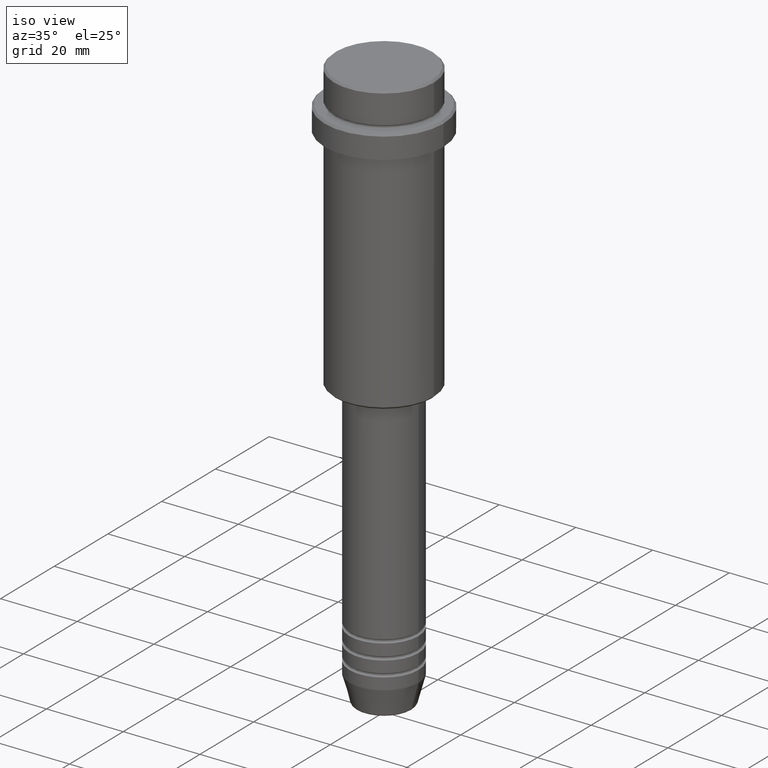
[diagram: clean part render]
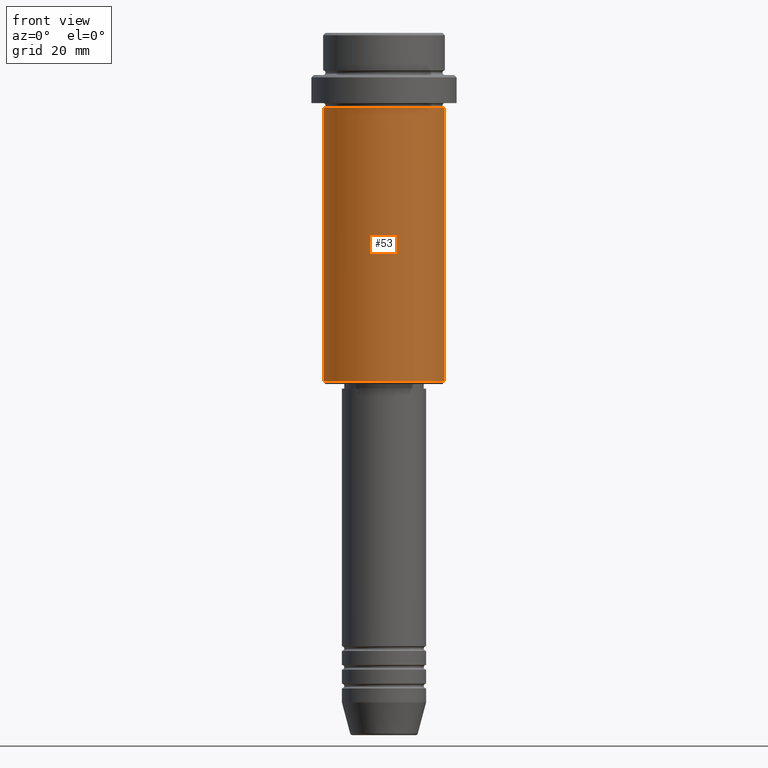
[diagram: tour spotlight — one face highlighted and labeled with its STEP entity id]
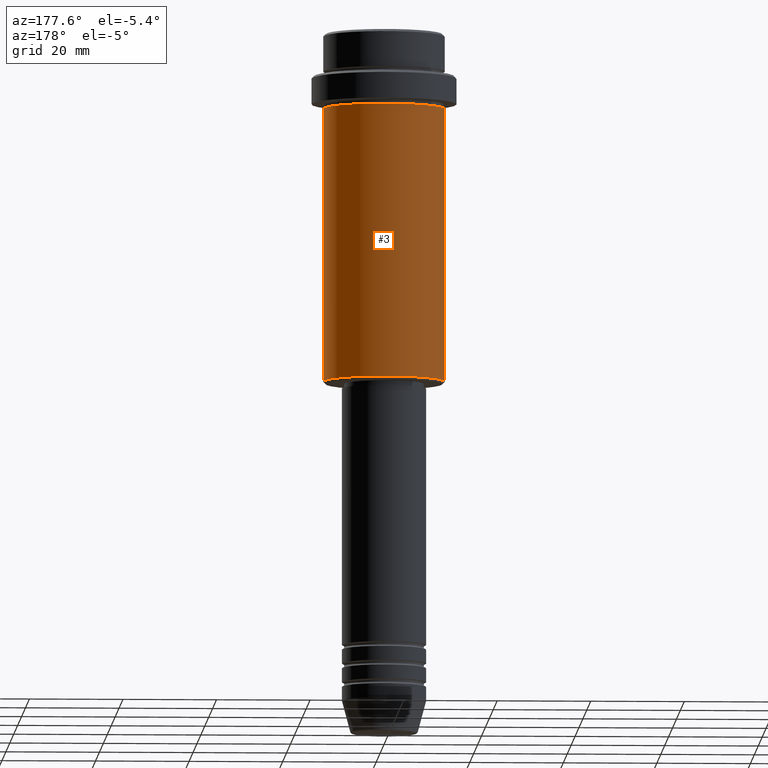
[diagram: tour spotlight — one face highlighted and labeled with its STEP entity id]
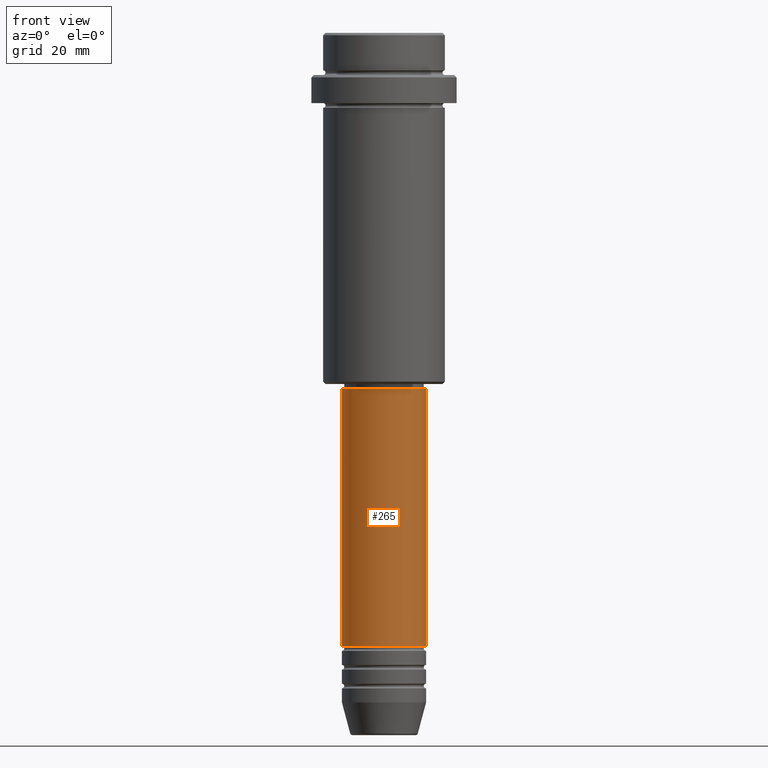
[diagram: tour spotlight — one face highlighted and labeled with its STEP entity id]
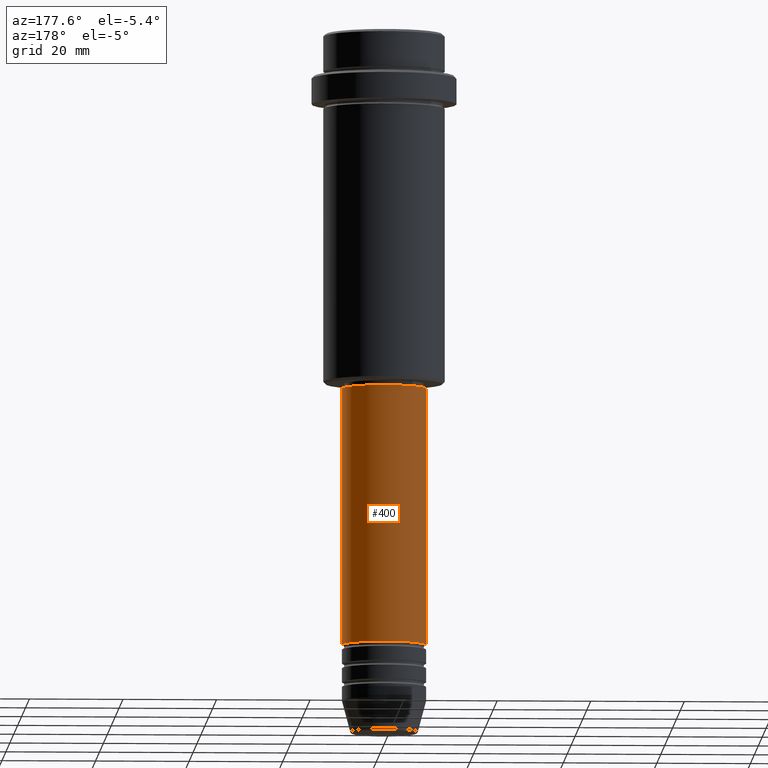
[diagram: tour spotlight — one face highlighted and labeled with its STEP entity id]
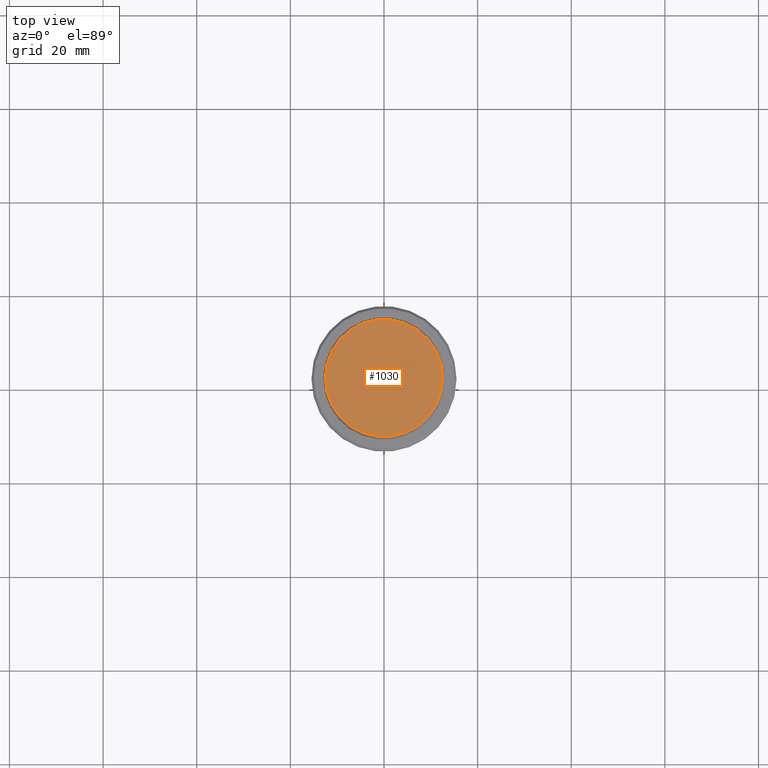
[diagram: tour spotlight — one face highlighted and labeled with its STEP entity id]
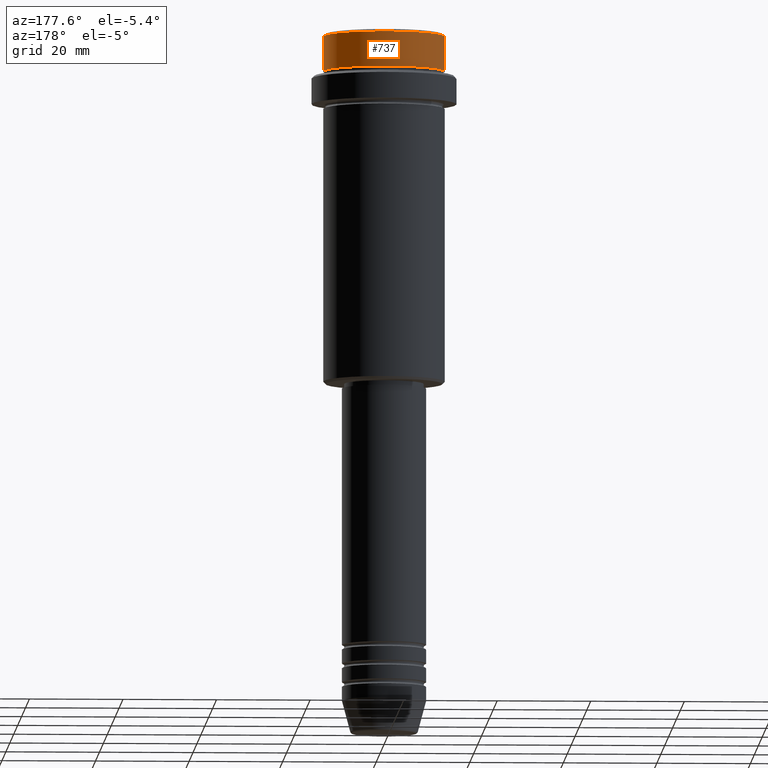
[diagram: tour spotlight — one face highlighted and labeled with its STEP entity id]
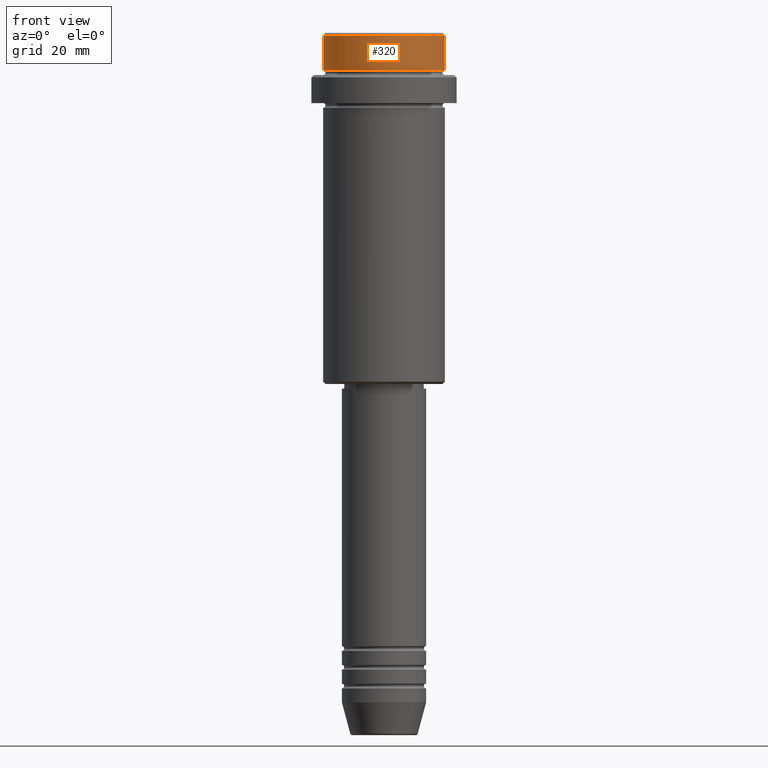
[diagram: tour spotlight — one face highlighted and labeled with its STEP entity id]
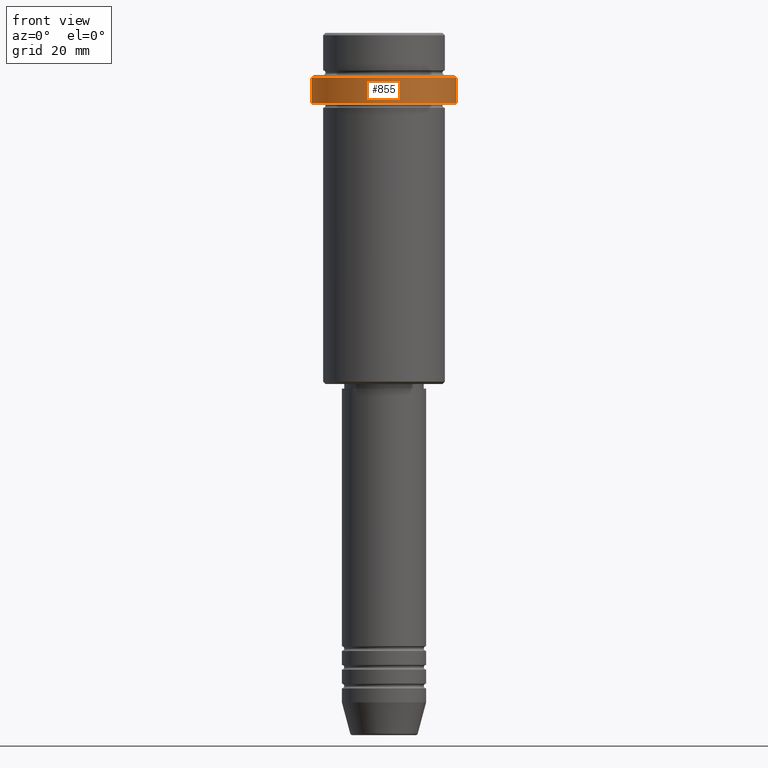
[diagram: tour spotlight — one face highlighted and labeled with its STEP entity id]
A machine part: a face-by-face anatomy tour. The part has 52 B-rep faces; the first image is the clean iso view, then the 8 largest visible faces are spotlighted one at a time (largest first), each with its STEP entity span.

Face 1 — front view, entity #53. In plain terms, the highlighted cylindrical surface (partial cylindrical patch) has radius 13 mm, axis along (-0, -0, 1).
Definition (entity closure, byte-faithful):
#9 = CARTESIAN_POINT ( 'NONE',  ( -13.00000000000000000, 1.592040838891559095E-15, 0.000000000000000000 ) ) ;
#30 = LINE ( 'NONE', #9, #189 ) ;
#34 = CARTESIAN_POINT ( 'NONE',  ( 0.000000000000000000, 0.000000000000000000, -16.00000000000000000 ) ) ;
#41 = CIRCLE ( 'NONE', #461, 13.00000000000000000 ) ;
#53 = ADVANCED_FACE ( 'NONE', ( #1317 ), #1106, .T. ) ;
#74 = VERTEX_POINT ( 'NONE', #1337 ) ;
#92 = AXIS2_PLACEMENT_3D ( 'NONE', #912, #284, #696 ) ;
#112 = EDGE_CURVE ( 'NONE', #922, #871, #30, .T. ) ;
#160 = EDGE_CURVE ( 'NONE', #922, #74, #253, .T. ) ;
#189 = VECTOR ( 'NONE', #470, 1000.000000000000000 ) ;
#240 = EDGE_CURVE ( 'NONE', #871, #553, #41, .T. ) ;
#253 = CIRCLE ( 'NONE', #92, 13.00000000000000000 ) ;
#284 = DIRECTION ( 'NONE',  ( -0.000000000000000000, -0.000000000000000000, 1.000000000000000000 ) ) ;
#329 = AXIS2_PLACEMENT_3D ( 'NONE', #457, #567, #1328 ) ;
#457 = CARTESIAN_POINT ( 'NONE',  ( 0.000000000000000000, 0.000000000000000000, 0.000000000000000000 ) ) ;
#461 = AXIS2_PLACEMENT_3D ( 'NONE', #34, #815, #924 ) ;
#468 = CARTESIAN_POINT ( 'NONE',  ( -13.00000000000000000, 1.592040838891559095E-15, -74.49999999999997158 ) ) ;
#470 = DIRECTION ( 'NONE',  ( -0.000000000000000000, -0.000000000000000000, 1.000000000000000000 ) ) ;
#519 = ORIENTED_EDGE ( 'NONE', *, *, #1285, .T. ) ;
#544 = CARTESIAN_POINT ( 'NONE',  ( 13.00000000000000000, 0.000000000000000000, -16.00000000000000000 ) ) ;
#553 = VERTEX_POINT ( 'NONE', #544 ) ;
#567 = DIRECTION ( 'NONE',  ( -0.000000000000000000, -0.000000000000000000, 1.000000000000000000 ) ) ;
#696 = DIRECTION ( 'NONE',  ( -1.000000000000000000, 0.000000000000000000, 0.000000000000000000 ) ) ;
#749 = DIRECTION ( 'NONE',  ( -0.000000000000000000, -0.000000000000000000, 1.000000000000000000 ) ) ;
#815 = DIRECTION ( 'NONE',  ( -0.000000000000000000, -0.000000000000000000, 1.000000000000000000 ) ) ;
#837 = ORIENTED_EDGE ( 'NONE', *, *, #240, .F. ) ;
#871 = VERTEX_POINT ( 'NONE', #974 ) ;
#912 = CARTESIAN_POINT ( 'NONE',  ( 0.000000000000000000, 0.000000000000000000, -74.49999999999997158 ) ) ;
#922 = VERTEX_POINT ( 'NONE', #468 ) ;
#924 = DIRECTION ( 'NONE',  ( 1.000000000000000000, 0.000000000000000000, 0.000000000000000000 ) ) ;
#946 = ORIENTED_EDGE ( 'NONE', *, *, #112, .F. ) ;
#974 = CARTESIAN_POINT ( 'NONE',  ( -13.00000000000000000, 1.592040838891559095E-15, -16.00000000000000000 ) ) ;
#975 = EDGE_LOOP ( 'NONE', ( #946, #1021, #519, #837 ) ) ;
#1021 = ORIENTED_EDGE ( 'NONE', *, *, #160, .T. ) ;
#1095 = LINE ( 'NONE', #1305, #1225 ) ;
#1106 = CYLINDRICAL_SURFACE ( 'NONE', #329, 13.00000000000000000 ) ;
#1225 = VECTOR ( 'NONE', #749, 1000.000000000000000 ) ;
#1285 = EDGE_CURVE ( 'NONE', #74, #553, #1095, .T. ) ;
#1305 = CARTESIAN_POINT ( 'NONE',  ( 13.00000000000000000, 0.000000000000000000, 0.000000000000000000 ) ) ;
#1317 = FACE_OUTER_BOUND ( 'NONE', #975, .T. ) ;
#1328 = DIRECTION ( 'NONE',  ( 1.000000000000000000, 0.000000000000000000, 0.000000000000000000 ) ) ;
#1337 = CARTESIAN_POINT ( 'NONE',  ( 13.00000000000000000, 0.000000000000000000, -74.49999999999997158 ) ) ;

Face 2 — auxiliary view, entity #3. In plain terms, the highlighted cylindrical surface (partial cylindrical patch) has radius 13 mm, axis along (-0, -0, 1).
Definition (entity closure, byte-faithful):
#3 = ADVANCED_FACE ( 'NONE', ( #682 ), #1119, .T. ) ;
#9 = CARTESIAN_POINT ( 'NONE',  ( -13.00000000000000000, 1.592040838891559095E-15, 0.000000000000000000 ) ) ;
#30 = LINE ( 'NONE', #9, #189 ) ;
#55 = CARTESIAN_POINT ( 'NONE',  ( 0.000000000000000000, 0.000000000000000000, -16.00000000000000000 ) ) ;
#74 = VERTEX_POINT ( 'NONE', #1337 ) ;
#112 = EDGE_CURVE ( 'NONE', #922, #871, #30, .T. ) ;
#133 = DIRECTION ( 'NONE',  ( -0.000000000000000000, -0.000000000000000000, 1.000000000000000000 ) ) ;
#176 = ORIENTED_EDGE ( 'NONE', *, *, #437, .T. ) ;
#189 = VECTOR ( 'NONE', #470, 1000.000000000000000 ) ;
#346 = CARTESIAN_POINT ( 'NONE',  ( 0.000000000000000000, 0.000000000000000000, 0.000000000000000000 ) ) ;
#354 = DIRECTION ( 'NONE',  ( 1.000000000000000000, 0.000000000000000000, 0.000000000000000000 ) ) ;
#388 = ORIENTED_EDGE ( 'NONE', *, *, #628, .F. ) ;
#416 = DIRECTION ( 'NONE',  ( 1.000000000000000000, 0.000000000000000000, 0.000000000000000000 ) ) ;
#437 = EDGE_CURVE ( 'NONE', #74, #922, #1015, .T. ) ;
#468 = CARTESIAN_POINT ( 'NONE',  ( -13.00000000000000000, 1.592040838891559095E-15, -74.49999999999997158 ) ) ;
#470 = DIRECTION ( 'NONE',  ( -0.000000000000000000, -0.000000000000000000, 1.000000000000000000 ) ) ;
#540 = DIRECTION ( 'NONE',  ( -1.000000000000000000, 0.000000000000000000, 0.000000000000000000 ) ) ;
#544 = CARTESIAN_POINT ( 'NONE',  ( 13.00000000000000000, 0.000000000000000000, -16.00000000000000000 ) ) ;
#553 = VERTEX_POINT ( 'NONE', #544 ) ;
#559 = CARTESIAN_POINT ( 'NONE',  ( 0.000000000000000000, 0.000000000000000000, -74.49999999999997158 ) ) ;
#628 = EDGE_CURVE ( 'NONE', #553, #871, #666, .T. ) ;
#666 = CIRCLE ( 'NONE', #1333, 13.00000000000000000 ) ;
#682 = FACE_OUTER_BOUND ( 'NONE', #701, .T. ) ;
#687 = AXIS2_PLACEMENT_3D ( 'NONE', #346, #133, #354 ) ;
#701 = EDGE_LOOP ( 'NONE', ( #176, #1065, #388, #704 ) ) ;
#704 = ORIENTED_EDGE ( 'NONE', *, *, #1285, .F. ) ;
#749 = DIRECTION ( 'NONE',  ( -0.000000000000000000, -0.000000000000000000, 1.000000000000000000 ) ) ;
#871 = VERTEX_POINT ( 'NONE', #974 ) ;
#922 = VERTEX_POINT ( 'NONE', #468 ) ;
#928 = DIRECTION ( 'NONE',  ( -0.000000000000000000, -0.000000000000000000, 1.000000000000000000 ) ) ;
#974 = CARTESIAN_POINT ( 'NONE',  ( -13.00000000000000000, 1.592040838891559095E-15, -16.00000000000000000 ) ) ;
#1015 = CIRCLE ( 'NONE', #1196, 13.00000000000000000 ) ;
#1065 = ORIENTED_EDGE ( 'NONE', *, *, #112, .T. ) ;
#1095 = LINE ( 'NONE', #1305, #1225 ) ;
#1098 = DIRECTION ( 'NONE',  ( -0.000000000000000000, -0.000000000000000000, 1.000000000000000000 ) ) ;
#1119 = CYLINDRICAL_SURFACE ( 'NONE', #687, 13.00000000000000000 ) ;
#1196 = AXIS2_PLACEMENT_3D ( 'NONE', #559, #1098, #540 ) ;
#1225 = VECTOR ( 'NONE', #749, 1000.000000000000000 ) ;
#1285 = EDGE_CURVE ( 'NONE', #74, #553, #1095, .T. ) ;
#1305 = CARTESIAN_POINT ( 'NONE',  ( 13.00000000000000000, 0.000000000000000000, 0.000000000000000000 ) ) ;
#1333 = AXIS2_PLACEMENT_3D ( 'NONE', #55, #928, #416 ) ;
#1337 = CARTESIAN_POINT ( 'NONE',  ( 13.00000000000000000, 0.000000000000000000, -74.49999999999997158 ) ) ;

Face 3 — front view, entity #265. In plain terms, the highlighted cylindrical surface (partial cylindrical patch) has radius 9 mm, axis along (-0, -0, 1).
Definition (entity closure, byte-faithful):
#57 = DIRECTION ( 'NONE',  ( -0.000000000000000000, -0.000000000000000000, 1.000000000000000000 ) ) ;
#60 = EDGE_CURVE ( 'NONE', #1408, #1393, #1170, .T. ) ;
#98 = VECTOR ( 'NONE', #596, 1000.000000000000000 ) ;
#121 = CARTESIAN_POINT ( 'NONE',  ( 9.000000000000000000, 0.000000000000000000, -130.9999999999998863 ) ) ;
#203 = CARTESIAN_POINT ( 'NONE',  ( 0.000000000000000000, 0.000000000000000000, 0.000000000000000000 ) ) ;
#204 = EDGE_CURVE ( 'NONE', #1393, #857, #1247, .T. ) ;
#233 = CARTESIAN_POINT ( 'NONE',  ( -9.000000000000000000, 1.102182119232617714E-15, -130.9999999999998863 ) ) ;
#241 = DIRECTION ( 'NONE',  ( -0.000000000000000000, -0.000000000000000000, 1.000000000000000000 ) ) ;
#265 = ADVANCED_FACE ( 'NONE', ( #1081 ), #961, .T. ) ;
#487 = CARTESIAN_POINT ( 'NONE',  ( 0.000000000000000000, 0.000000000000000000, -76.00000000000000000 ) ) ;
#557 = DIRECTION ( 'NONE',  ( 1.000000000000000000, 0.000000000000000000, 0.000000000000000000 ) ) ;
#570 = AXIS2_PLACEMENT_3D ( 'NONE', #1228, #241, #557 ) ;
#587 = DIRECTION ( 'NONE',  ( 1.000000000000000000, 0.000000000000000000, 0.000000000000000000 ) ) ;
#596 = DIRECTION ( 'NONE',  ( -0.000000000000000000, -0.000000000000000000, 1.000000000000000000 ) ) ;
#624 = DIRECTION ( 'NONE',  ( -0.000000000000000000, -0.000000000000000000, 1.000000000000000000 ) ) ;
#692 = ORIENTED_EDGE ( 'NONE', *, *, #1097, .F. ) ;
#734 = EDGE_CURVE ( 'NONE', #1197, #857, #1224, .T. ) ;
#746 = CARTESIAN_POINT ( 'NONE',  ( 9.000000000000001776, 0.000000000000000000, -76.00000000000000000 ) ) ;
#767 = AXIS2_PLACEMENT_3D ( 'NONE', #487, #1145, #587 ) ;
#813 = EDGE_LOOP ( 'NONE', ( #692, #925, #1386, #1165 ) ) ;
#830 = CARTESIAN_POINT ( 'NONE',  ( -9.000000000000001776, 1.102182119232617911E-15, -76.00000000000000000 ) ) ;
#838 = CARTESIAN_POINT ( 'NONE',  ( -9.000000000000001776, 1.102182119232617911E-15, 0.000000000000000000 ) ) ;
#857 = VERTEX_POINT ( 'NONE', #746 ) ;
#914 = CARTESIAN_POINT ( 'NONE',  ( 9.000000000000001776, 0.000000000000000000, 0.000000000000000000 ) ) ;
#925 = ORIENTED_EDGE ( 'NONE', *, *, #60, .T. ) ;
#961 = CYLINDRICAL_SURFACE ( 'NONE', #1349, 9.000000000000001776 ) ;
#1081 = FACE_OUTER_BOUND ( 'NONE', #813, .T. ) ;
#1097 = EDGE_CURVE ( 'NONE', #1408, #1197, #1380, .T. ) ;
#1145 = DIRECTION ( 'NONE',  ( -0.000000000000000000, -0.000000000000000000, 1.000000000000000000 ) ) ;
#1165 = ORIENTED_EDGE ( 'NONE', *, *, #734, .F. ) ;
#1168 = VECTOR ( 'NONE', #57, 1000.000000000000000 ) ;
#1170 = CIRCLE ( 'NONE', #570, 9.000000000000000000 ) ;
#1197 = VERTEX_POINT ( 'NONE', #830 ) ;
#1224 = CIRCLE ( 'NONE', #767, 9.000000000000001776 ) ;
#1228 = CARTESIAN_POINT ( 'NONE',  ( 0.000000000000000000, 0.000000000000000000, -130.9999999999998863 ) ) ;
#1247 = LINE ( 'NONE', #914, #1168 ) ;
#1303 = DIRECTION ( 'NONE',  ( 1.000000000000000000, 0.000000000000000000, 0.000000000000000000 ) ) ;
#1349 = AXIS2_PLACEMENT_3D ( 'NONE', #203, #624, #1303 ) ;
#1380 = LINE ( 'NONE', #838, #98 ) ;
#1386 = ORIENTED_EDGE ( 'NONE', *, *, #204, .T. ) ;
#1393 = VERTEX_POINT ( 'NONE', #121 ) ;
#1408 = VERTEX_POINT ( 'NONE', #233 ) ;

Face 4 — auxiliary view, entity #400. In plain terms, the highlighted cylindrical surface (partial cylindrical patch) has radius 9 mm, axis along (-0, -0, 1).
Definition (entity closure, byte-faithful):
#8 = CARTESIAN_POINT ( 'NONE',  ( 0.000000000000000000, 0.000000000000000000, 0.000000000000000000 ) ) ;
#57 = DIRECTION ( 'NONE',  ( -0.000000000000000000, -0.000000000000000000, 1.000000000000000000 ) ) ;
#98 = VECTOR ( 'NONE', #596, 1000.000000000000000 ) ;
#121 = CARTESIAN_POINT ( 'NONE',  ( 9.000000000000000000, 0.000000000000000000, -130.9999999999998863 ) ) ;
#135 = EDGE_CURVE ( 'NONE', #857, #1197, #1219, .T. ) ;
#186 = DIRECTION ( 'NONE',  ( 1.000000000000000000, 0.000000000000000000, 0.000000000000000000 ) ) ;
#204 = EDGE_CURVE ( 'NONE', #1393, #857, #1247, .T. ) ;
#233 = CARTESIAN_POINT ( 'NONE',  ( -9.000000000000000000, 1.102182119232617714E-15, -130.9999999999998863 ) ) ;
#285 = ORIENTED_EDGE ( 'NONE', *, *, #204, .F. ) ;
#288 = DIRECTION ( 'NONE',  ( -0.000000000000000000, -0.000000000000000000, 1.000000000000000000 ) ) ;
#356 = CIRCLE ( 'NONE', #1402, 9.000000000000000000 ) ;
#400 = ADVANCED_FACE ( 'NONE', ( #1415 ), #1114, .T. ) ;
#497 = CARTESIAN_POINT ( 'NONE',  ( 0.000000000000000000, 0.000000000000000000, -76.00000000000000000 ) ) ;
#514 = ORIENTED_EDGE ( 'NONE', *, *, #1097, .T. ) ;
#552 = AXIS2_PLACEMENT_3D ( 'NONE', #8, #1307, #1008 ) ;
#560 = EDGE_LOOP ( 'NONE', ( #1046, #514, #659, #285 ) ) ;
#596 = DIRECTION ( 'NONE',  ( -0.000000000000000000, -0.000000000000000000, 1.000000000000000000 ) ) ;
#659 = ORIENTED_EDGE ( 'NONE', *, *, #135, .F. ) ;
#746 = CARTESIAN_POINT ( 'NONE',  ( 9.000000000000001776, 0.000000000000000000, -76.00000000000000000 ) ) ;
#830 = CARTESIAN_POINT ( 'NONE',  ( -9.000000000000001776, 1.102182119232617911E-15, -76.00000000000000000 ) ) ;
#838 = CARTESIAN_POINT ( 'NONE',  ( -9.000000000000001776, 1.102182119232617911E-15, 0.000000000000000000 ) ) ;
#857 = VERTEX_POINT ( 'NONE', #746 ) ;
#914 = CARTESIAN_POINT ( 'NONE',  ( 9.000000000000001776, 0.000000000000000000, 0.000000000000000000 ) ) ;
#1008 = DIRECTION ( 'NONE',  ( 1.000000000000000000, 0.000000000000000000, 0.000000000000000000 ) ) ;
#1046 = ORIENTED_EDGE ( 'NONE', *, *, #1179, .T. ) ;
#1097 = EDGE_CURVE ( 'NONE', #1408, #1197, #1380, .T. ) ;
#1114 = CYLINDRICAL_SURFACE ( 'NONE', #552, 9.000000000000001776 ) ;
#1157 = DIRECTION ( 'NONE',  ( -0.000000000000000000, -0.000000000000000000, 1.000000000000000000 ) ) ;
#1168 = VECTOR ( 'NONE', #57, 1000.000000000000000 ) ;
#1179 = EDGE_CURVE ( 'NONE', #1393, #1408, #356, .T. ) ;
#1197 = VERTEX_POINT ( 'NONE', #830 ) ;
#1219 = CIRCLE ( 'NONE', #1372, 9.000000000000001776 ) ;
#1247 = LINE ( 'NONE', #914, #1168 ) ;
#1261 = DIRECTION ( 'NONE',  ( 1.000000000000000000, 0.000000000000000000, 0.000000000000000000 ) ) ;
#1272 = CARTESIAN_POINT ( 'NONE',  ( 0.000000000000000000, 0.000000000000000000, -130.9999999999998863 ) ) ;
#1307 = DIRECTION ( 'NONE',  ( -0.000000000000000000, -0.000000000000000000, 1.000000000000000000 ) ) ;
#1372 = AXIS2_PLACEMENT_3D ( 'NONE', #497, #1157, #1261 ) ;
#1380 = LINE ( 'NONE', #838, #98 ) ;
#1393 = VERTEX_POINT ( 'NONE', #121 ) ;
#1402 = AXIS2_PLACEMENT_3D ( 'NONE', #1272, #288, #186 ) ;
#1408 = VERTEX_POINT ( 'NONE', #233 ) ;
#1415 = FACE_OUTER_BOUND ( 'NONE', #560, .T. ) ;

Face 5 — top view, entity #1030. In plain terms, the highlighted planar face has unit normal (0, -0, 1).
Definition (entity closure, byte-faithful):
#2 = AXIS2_PLACEMENT_3D ( 'NONE', #993, #215, #1405 ) ;
#37 = PLANE ( 'NONE',  #768 ) ;
#101 = CARTESIAN_POINT ( 'NONE',  ( -12.50000000000001243, 0.000000000000000000, 0.000000000000000000 ) ) ;
#123 = EDGE_CURVE ( 'NONE', #489, #805, #1146, .T. ) ;
#199 = ORIENTED_EDGE ( 'NONE', *, *, #826, .T. ) ;
#215 = DIRECTION ( 'NONE',  ( -0.000000000000000000, -0.000000000000000000, 1.000000000000000000 ) ) ;
#434 = EDGE_LOOP ( 'NONE', ( #199, #891 ) ) ;
#478 = CARTESIAN_POINT ( 'NONE',  ( 0.000000000000000000, 0.000000000000000000, 0.000000000000000000 ) ) ;
#489 = VERTEX_POINT ( 'NONE', #905 ) ;
#549 = AXIS2_PLACEMENT_3D ( 'NONE', #1005, #770, #1207 ) ;
#569 = DIRECTION ( 'NONE',  ( 0.000000000000000000, -0.000000000000000000, 1.000000000000000000 ) ) ;
#644 = CIRCLE ( 'NONE', #2, 12.50000000000001243 ) ;
#768 = AXIS2_PLACEMENT_3D ( 'NONE', #478, #569, #1012 ) ;
#770 = DIRECTION ( 'NONE',  ( -0.000000000000000000, -0.000000000000000000, 1.000000000000000000 ) ) ;
#805 = VERTEX_POINT ( 'NONE', #101 ) ;
#826 = EDGE_CURVE ( 'NONE', #805, #489, #644, .T. ) ;
#891 = ORIENTED_EDGE ( 'NONE', *, *, #123, .T. ) ;
#905 = CARTESIAN_POINT ( 'NONE',  ( 12.50000000000001243, 1.561424668912876097E-15, 0.000000000000000000 ) ) ;
#993 = CARTESIAN_POINT ( 'NONE',  ( 0.000000000000000000, 0.000000000000000000, 0.000000000000000000 ) ) ;
#1005 = CARTESIAN_POINT ( 'NONE',  ( 0.000000000000000000, 0.000000000000000000, 0.000000000000000000 ) ) ;
#1012 = DIRECTION ( 'NONE',  ( 1.000000000000000000, 0.000000000000000000, 0.000000000000000000 ) ) ;
#1030 = ADVANCED_FACE ( 'NONE', ( #1239 ), #37, .T. ) ;
#1146 = CIRCLE ( 'NONE', #549, 12.50000000000001243 ) ;
#1207 = DIRECTION ( 'NONE',  ( 1.000000000000000000, 0.000000000000000000, 0.000000000000000000 ) ) ;
#1239 = FACE_OUTER_BOUND ( 'NONE', #434, .T. ) ;
#1405 = DIRECTION ( 'NONE',  ( 1.000000000000000000, 0.000000000000000000, 0.000000000000000000 ) ) ;

Face 6 — auxiliary view, entity #737. In plain terms, the highlighted cylindrical surface (partial cylindrical patch) has radius 13 mm, axis along (-0, -0, 1).
Definition (entity closure, byte-faithful):
#32 = EDGE_CURVE ( 'NONE', #393, #149, #786, .T. ) ;
#46 = FACE_OUTER_BOUND ( 'NONE', #874, .T. ) ;
#120 = CARTESIAN_POINT ( 'NONE',  ( 0.000000000000000000, 0.000000000000000000, -0.4999999999999900080 ) ) ;
#149 = VERTEX_POINT ( 'NONE', #1366 ) ;
#171 = ORIENTED_EDGE ( 'NONE', *, *, #1082, .T. ) ;
#182 = DIRECTION ( 'NONE',  ( 1.000000000000000000, 0.000000000000000000, 0.000000000000000000 ) ) ;
#312 = ORIENTED_EDGE ( 'NONE', *, *, #766, .F. ) ;
#324 = ORIENTED_EDGE ( 'NONE', *, *, #1234, .T. ) ;
#385 = CARTESIAN_POINT ( 'NONE',  ( 12.99999999999999822, 0.000000000000000000, 0.000000000000000000 ) ) ;
#393 = VERTEX_POINT ( 'NONE', #524 ) ;
#435 = CARTESIAN_POINT ( 'NONE',  ( 0.000000000000000000, 0.000000000000000000, -7.999999999999998224 ) ) ;
#448 = AXIS2_PLACEMENT_3D ( 'NONE', #435, #760, #1404 ) ;
#472 = LINE ( 'NONE', #824, #1177 ) ;
#496 = ORIENTED_EDGE ( 'NONE', *, *, #32, .T. ) ;
#524 = CARTESIAN_POINT ( 'NONE',  ( -12.99999999999999822, 1.592040838891558898E-15, -0.4999999999999900080 ) ) ;
#555 = AXIS2_PLACEMENT_3D ( 'NONE', #1263, #1286, #182 ) ;
#678 = CARTESIAN_POINT ( 'NONE',  ( 12.99999999999999822, 0.000000000000000000, -7.999999999999998224 ) ) ;
#737 = ADVANCED_FACE ( 'NONE', ( #46 ), #959, .T. ) ;
#748 = VERTEX_POINT ( 'NONE', #1282 ) ;
#760 = DIRECTION ( 'NONE',  ( -0.000000000000000000, -0.000000000000000000, 1.000000000000000000 ) ) ;
#766 = EDGE_CURVE ( 'NONE', #1379, #149, #1260, .T. ) ;
#786 = CIRCLE ( 'NONE', #1194, 12.99999999999999822 ) ;
#824 = CARTESIAN_POINT ( 'NONE',  ( -12.99999999999999822, 1.592040838891558898E-15, 0.000000000000000000 ) ) ;
#825 = DIRECTION ( 'NONE',  ( -0.000000000000000000, -0.000000000000000000, 1.000000000000000000 ) ) ;
#874 = EDGE_LOOP ( 'NONE', ( #324, #171, #496, #312 ) ) ;
#886 = DIRECTION ( 'NONE',  ( 1.000000000000000000, 0.000000000000000000, 0.000000000000000000 ) ) ;
#903 = VECTOR ( 'NONE', #825, 1000.000000000000000 ) ;
#959 = CYLINDRICAL_SURFACE ( 'NONE', #555, 12.99999999999999822 ) ;
#1000 = DIRECTION ( 'NONE',  ( 0.000000000000000000, 0.000000000000000000, -1.000000000000000000 ) ) ;
#1067 = CIRCLE ( 'NONE', #448, 12.99999999999999822 ) ;
#1082 = EDGE_CURVE ( 'NONE', #748, #393, #472, .T. ) ;
#1177 = VECTOR ( 'NONE', #1259, 1000.000000000000000 ) ;
#1194 = AXIS2_PLACEMENT_3D ( 'NONE', #120, #1000, #886 ) ;
#1234 = EDGE_CURVE ( 'NONE', #1379, #748, #1067, .T. ) ;
#1259 = DIRECTION ( 'NONE',  ( -0.000000000000000000, -0.000000000000000000, 1.000000000000000000 ) ) ;
#1260 = LINE ( 'NONE', #385, #903 ) ;
#1263 = CARTESIAN_POINT ( 'NONE',  ( 0.000000000000000000, 0.000000000000000000, 0.000000000000000000 ) ) ;
#1282 = CARTESIAN_POINT ( 'NONE',  ( -12.99999999999999822, 1.592040838891558898E-15, -7.999999999999998224 ) ) ;
#1286 = DIRECTION ( 'NONE',  ( -0.000000000000000000, -0.000000000000000000, 1.000000000000000000 ) ) ;
#1366 = CARTESIAN_POINT ( 'NONE',  ( 12.99999999999999822, 0.000000000000000000, -0.4999999999999900080 ) ) ;
#1379 = VERTEX_POINT ( 'NONE', #678 ) ;
#1404 = DIRECTION ( 'NONE',  ( 1.000000000000000000, 0.000000000000000000, 0.000000000000000000 ) ) ;

Face 7 — front view, entity #320. In plain terms, the highlighted cylindrical surface (partial cylindrical patch) has radius 13 mm, axis along (-0, -0, 1).
Definition (entity closure, byte-faithful):
#63 = CARTESIAN_POINT ( 'NONE',  ( 0.000000000000000000, 0.000000000000000000, -7.999999999999998224 ) ) ;
#102 = EDGE_CURVE ( 'NONE', #149, #393, #397, .T. ) ;
#138 = DIRECTION ( 'NONE',  ( 0.000000000000000000, 0.000000000000000000, -1.000000000000000000 ) ) ;
#146 = AXIS2_PLACEMENT_3D ( 'NONE', #63, #938, #158 ) ;
#149 = VERTEX_POINT ( 'NONE', #1366 ) ;
#158 = DIRECTION ( 'NONE',  ( 1.000000000000000000, 0.000000000000000000, 0.000000000000000000 ) ) ;
#211 = ORIENTED_EDGE ( 'NONE', *, *, #766, .T. ) ;
#227 = AXIS2_PLACEMENT_3D ( 'NONE', #572, #138, #1217 ) ;
#316 = CARTESIAN_POINT ( 'NONE',  ( 0.000000000000000000, 0.000000000000000000, 0.000000000000000000 ) ) ;
#320 = ADVANCED_FACE ( 'NONE', ( #1392 ), #854, .T. ) ;
#374 = ORIENTED_EDGE ( 'NONE', *, *, #684, .T. ) ;
#379 = ORIENTED_EDGE ( 'NONE', *, *, #102, .T. ) ;
#385 = CARTESIAN_POINT ( 'NONE',  ( 12.99999999999999822, 0.000000000000000000, 0.000000000000000000 ) ) ;
#393 = VERTEX_POINT ( 'NONE', #524 ) ;
#397 = CIRCLE ( 'NONE', #227, 12.99999999999999822 ) ;
#465 = CIRCLE ( 'NONE', #146, 12.99999999999999822 ) ;
#472 = LINE ( 'NONE', #824, #1177 ) ;
#524 = CARTESIAN_POINT ( 'NONE',  ( -12.99999999999999822, 1.592040838891558898E-15, -0.4999999999999900080 ) ) ;
#572 = CARTESIAN_POINT ( 'NONE',  ( 0.000000000000000000, 0.000000000000000000, -0.4999999999999900080 ) ) ;
#678 = CARTESIAN_POINT ( 'NONE',  ( 12.99999999999999822, 0.000000000000000000, -7.999999999999998224 ) ) ;
#684 = EDGE_CURVE ( 'NONE', #748, #1379, #465, .T. ) ;
#748 = VERTEX_POINT ( 'NONE', #1282 ) ;
#752 = DIRECTION ( 'NONE',  ( 1.000000000000000000, 0.000000000000000000, 0.000000000000000000 ) ) ;
#766 = EDGE_CURVE ( 'NONE', #1379, #149, #1260, .T. ) ;
#824 = CARTESIAN_POINT ( 'NONE',  ( -12.99999999999999822, 1.592040838891558898E-15, 0.000000000000000000 ) ) ;
#825 = DIRECTION ( 'NONE',  ( -0.000000000000000000, -0.000000000000000000, 1.000000000000000000 ) ) ;
#854 = CYLINDRICAL_SURFACE ( 'NONE', #1084, 12.99999999999999822 ) ;
#903 = VECTOR ( 'NONE', #825, 1000.000000000000000 ) ;
#938 = DIRECTION ( 'NONE',  ( -0.000000000000000000, -0.000000000000000000, 1.000000000000000000 ) ) ;
#1082 = EDGE_CURVE ( 'NONE', #748, #393, #472, .T. ) ;
#1084 = AXIS2_PLACEMENT_3D ( 'NONE', #316, #1297, #752 ) ;
#1124 = ORIENTED_EDGE ( 'NONE', *, *, #1082, .F. ) ;
#1177 = VECTOR ( 'NONE', #1259, 1000.000000000000000 ) ;
#1217 = DIRECTION ( 'NONE',  ( 1.000000000000000000, 0.000000000000000000, 0.000000000000000000 ) ) ;
#1259 = DIRECTION ( 'NONE',  ( -0.000000000000000000, -0.000000000000000000, 1.000000000000000000 ) ) ;
#1260 = LINE ( 'NONE', #385, #903 ) ;
#1278 = EDGE_LOOP ( 'NONE', ( #1124, #374, #211, #379 ) ) ;
#1282 = CARTESIAN_POINT ( 'NONE',  ( -12.99999999999999822, 1.592040838891558898E-15, -7.999999999999998224 ) ) ;
#1297 = DIRECTION ( 'NONE',  ( -0.000000000000000000, -0.000000000000000000, 1.000000000000000000 ) ) ;
#1366 = CARTESIAN_POINT ( 'NONE',  ( 12.99999999999999822, 0.000000000000000000, -0.4999999999999900080 ) ) ;
#1379 = VERTEX_POINT ( 'NONE', #678 ) ;
#1392 = FACE_OUTER_BOUND ( 'NONE', #1278, .T. ) ;

Face 8 — front view, entity #855. In plain terms, the highlighted cylindrical surface (partial cylindrical patch) has radius 15.5 mm, axis along (-0, -0, 1).
Definition (entity closure, byte-faithful):
#68 = CARTESIAN_POINT ( 'NONE',  ( -15.50000000000000000, 1.898202538678397557E-15, 0.000000000000000000 ) ) ;
#117 = CIRCLE ( 'NONE', #664, 15.50000000000000000 ) ;
#136 = CARTESIAN_POINT ( 'NONE',  ( -15.50000000000000000, 1.898202538678397557E-15, -15.00000000000000000 ) ) ;
#173 = ORIENTED_EDGE ( 'NONE', *, *, #711, .T. ) ;
#225 = CARTESIAN_POINT ( 'NONE',  ( 0.000000000000000000, 0.000000000000000000, -9.500000000000053291 ) ) ;
#231 = CIRCLE ( 'NONE', #1111, 15.50000000000000000 ) ;
#404 = AXIS2_PLACEMENT_3D ( 'NONE', #1413, #1314, #657 ) ;
#431 = FACE_OUTER_BOUND ( 'NONE', #1361, .T. ) ;
#450 = DIRECTION ( 'NONE',  ( 0.000000000000000000, 0.000000000000000000, -1.000000000000000000 ) ) ;
#483 = VECTOR ( 'NONE', #831, 1000.000000000000000 ) ;
#502 = DIRECTION ( 'NONE',  ( 1.000000000000000000, 0.000000000000000000, 0.000000000000000000 ) ) ;
#510 = DIRECTION ( 'NONE',  ( -0.000000000000000000, -0.000000000000000000, 1.000000000000000000 ) ) ;
#543 = CARTESIAN_POINT ( 'NONE',  ( 15.50000000000000000, 0.000000000000000000, -15.00000000000000000 ) ) ;
#613 = EDGE_CURVE ( 'NONE', #1027, #693, #1161, .T. ) ;
#639 = EDGE_CURVE ( 'NONE', #1027, #836, #231, .T. ) ;
#647 = VERTEX_POINT ( 'NONE', #1054 ) ;
#657 = DIRECTION ( 'NONE',  ( 1.000000000000000000, 0.000000000000000000, 0.000000000000000000 ) ) ;
#664 = AXIS2_PLACEMENT_3D ( 'NONE', #225, #450, #894 ) ;
#693 = VERTEX_POINT ( 'NONE', #1059 ) ;
#711 = EDGE_CURVE ( 'NONE', #836, #647, #1357, .T. ) ;
#831 = DIRECTION ( 'NONE',  ( -0.000000000000000000, -0.000000000000000000, 1.000000000000000000 ) ) ;
#836 = VERTEX_POINT ( 'NONE', #543 ) ;
#848 = CARTESIAN_POINT ( 'NONE',  ( 0.000000000000000000, 0.000000000000000000, -15.00000000000000000 ) ) ;
#855 = ADVANCED_FACE ( 'NONE', ( #431 ), #985, .T. ) ;
#894 = DIRECTION ( 'NONE',  ( 1.000000000000000000, 0.000000000000000000, 0.000000000000000000 ) ) ;
#969 = ORIENTED_EDGE ( 'NONE', *, *, #639, .T. ) ;
#985 = CYLINDRICAL_SURFACE ( 'NONE', #404, 15.50000000000000000 ) ;
#1027 = VERTEX_POINT ( 'NONE', #136 ) ;
#1054 = CARTESIAN_POINT ( 'NONE',  ( 15.50000000000000000, 0.000000000000000000, -9.500000000000053291 ) ) ;
#1059 = CARTESIAN_POINT ( 'NONE',  ( -15.50000000000000000, 1.898202538678397557E-15, -9.500000000000053291 ) ) ;
#1111 = AXIS2_PLACEMENT_3D ( 'NONE', #848, #510, #502 ) ;
#1148 = VECTOR ( 'NONE', #1155, 1000.000000000000000 ) ;
#1155 = DIRECTION ( 'NONE',  ( -0.000000000000000000, -0.000000000000000000, 1.000000000000000000 ) ) ;
#1161 = LINE ( 'NONE', #68, #1148 ) ;
#1181 = ORIENTED_EDGE ( 'NONE', *, *, #613, .F. ) ;
#1237 = ORIENTED_EDGE ( 'NONE', *, *, #1391, .T. ) ;
#1314 = DIRECTION ( 'NONE',  ( -0.000000000000000000, -0.000000000000000000, 1.000000000000000000 ) ) ;
#1357 = LINE ( 'NONE', #1371, #483 ) ;
#1361 = EDGE_LOOP ( 'NONE', ( #1181, #969, #173, #1237 ) ) ;
#1371 = CARTESIAN_POINT ( 'NONE',  ( 15.50000000000000000, 0.000000000000000000, 0.000000000000000000 ) ) ;
#1391 = EDGE_CURVE ( 'NONE', #647, #693, #117, .T. ) ;
#1413 = CARTESIAN_POINT ( 'NONE',  ( 0.000000000000000000, 0.000000000000000000, 0.000000000000000000 ) ) ;